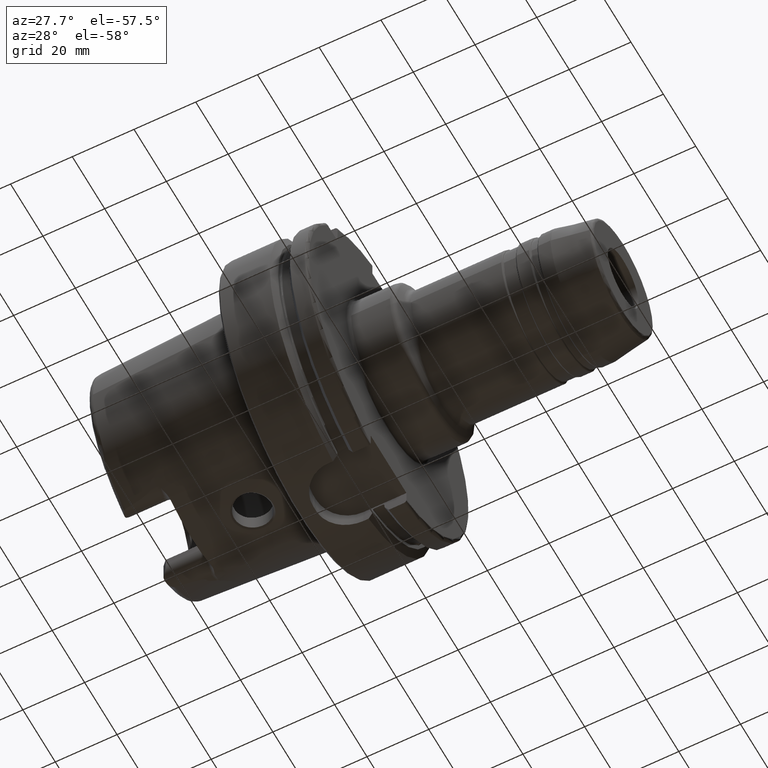
[diagram: clean part render]
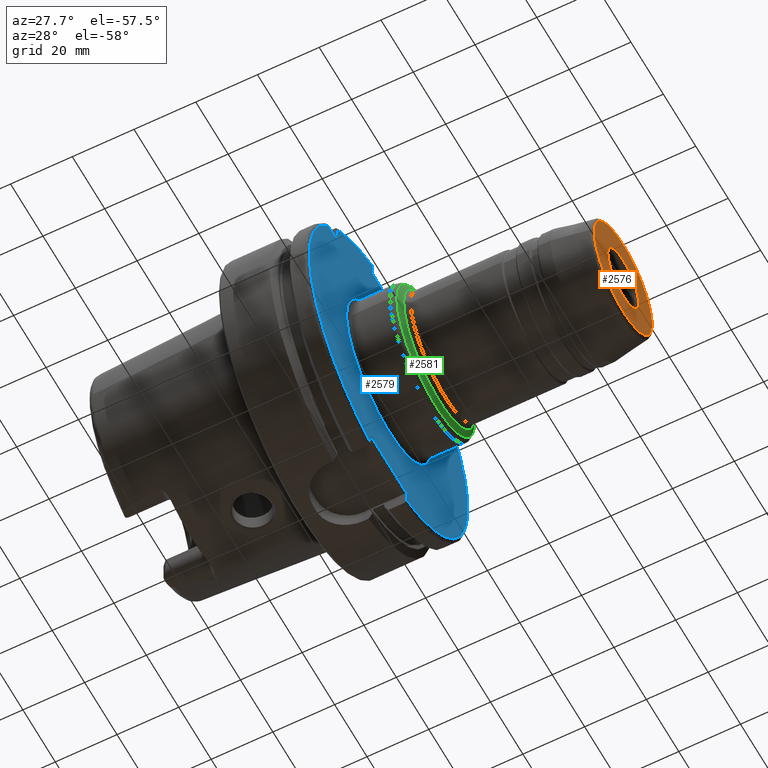
[diagram: same view with three faces highlighted in distinct colors, each labeled with its STEP entity id]
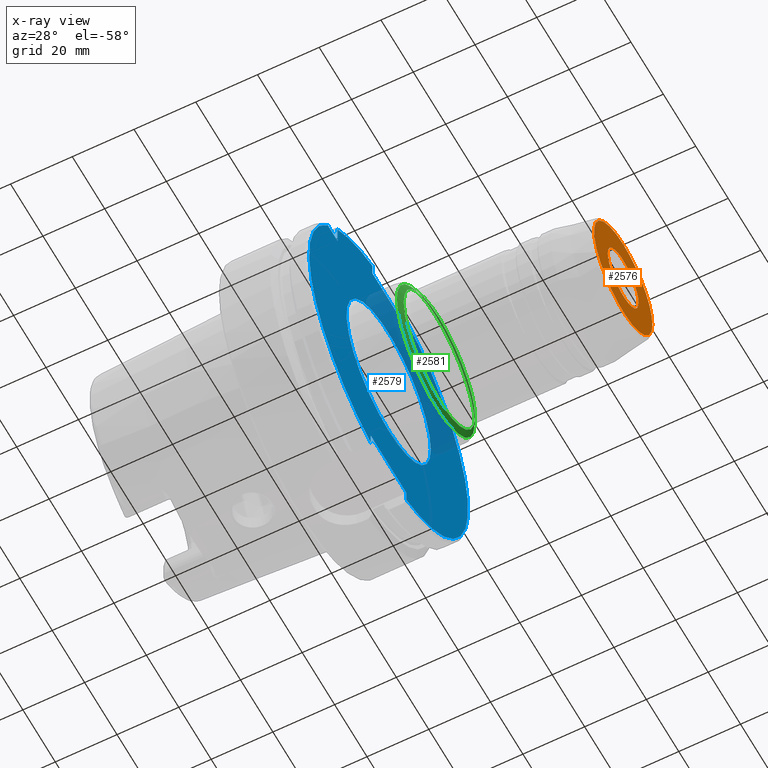
[diagram: x-ray of the same camera — body ghosted, the three highlighted faces saturated]
A machine part, auxiliary view with three faces highlighted in distinct colors.
The next image is the same camera in x-ray (body ghosted, the three faces saturated) — at least one of them is partly hidden behind the body in this view.
Their STEP definitions:

[orange] entity #2576 — the highlighted planar face has unit normal (1, 0, 0).
#93=FACE_BOUND('',#589,.T.);
#104=PLANE('',#2804);
#452=FACE_OUTER_BOUND('',#588,.T.);
#588=EDGE_LOOP('',(#1829,#1830));
#589=EDGE_LOOP('',(#1831,#1832));
#784=CIRCLE('',#2801,17.9609003688227);
#786=CIRCLE('',#2803,17.9609003688227);
#787=CIRCLE('',#2805,9.52499999999999);
#788=CIRCLE('',#2806,9.52499999999999);
#1009=VERTEX_POINT('',#4117);
#1010=VERTEX_POINT('',#4118);
#1011=VERTEX_POINT('',#4123);
#1012=VERTEX_POINT('',#4124);
#1324=EDGE_CURVE('',#1009,#1010,#784,.T.);
#1326=EDGE_CURVE('',#1010,#1009,#786,.T.);
#1327=EDGE_CURVE('',#1011,#1012,#787,.T.);
#1328=EDGE_CURVE('',#1012,#1011,#788,.T.);
#1829=ORIENTED_EDGE('',*,*,#1324,.F.);
#1830=ORIENTED_EDGE('',*,*,#1326,.F.);
#1831=ORIENTED_EDGE('',*,*,#1327,.F.);
#1832=ORIENTED_EDGE('',*,*,#1328,.F.);
#2576=ADVANCED_FACE('',(#452,#93),#104,.T.);
#2801=AXIS2_PLACEMENT_3D('',#4119,#3278,#3279);
#2803=AXIS2_PLACEMENT_3D('',#4121,#3282,#3283);
#2804=AXIS2_PLACEMENT_3D('',#4122,#3284,#3285);
#2805=AXIS2_PLACEMENT_3D('',#4125,#3286,#3287);
#2806=AXIS2_PLACEMENT_3D('',#4126,#3288,#3289);
#3278=DIRECTION('center_axis',(-1.,0.,0.));
#3279=DIRECTION('ref_axis',(0.,-1.,1.83697019872103E-16));
#3282=DIRECTION('center_axis',(-1.,0.,0.));
#3283=DIRECTION('ref_axis',(0.,-1.,1.83697019872103E-16));
#3284=DIRECTION('center_axis',(1.,0.,0.));
#3285=DIRECTION('ref_axis',(0.,0.,-1.));
#3286=DIRECTION('center_axis',(1.,0.,0.));
#3287=DIRECTION('ref_axis',(0.,0.,-1.));
#3288=DIRECTION('center_axis',(1.,0.,0.));
#3289=DIRECTION('ref_axis',(0.,0.,-1.));
#4117=CARTESIAN_POINT('',(105.,17.9609003688227,-5.49893978662082E-15));
#4118=CARTESIAN_POINT('',(105.,-2.19957591464833E-15,17.9609003688227));
#4119=CARTESIAN_POINT('Origin',(105.,0.,0.));
#4121=CARTESIAN_POINT('Origin',(105.,0.,0.));
#4122=CARTESIAN_POINT('Origin',(105.,9.52499999999999,0.));
#4123=CARTESIAN_POINT('',(105.,9.52499999999999,0.));
#4124=CARTESIAN_POINT('',(105.,-9.52499999999999,-1.16647607618785E-15));
#4125=CARTESIAN_POINT('Origin',(105.,0.,0.));
#4126=CARTESIAN_POINT('Origin',(105.,0.,0.));

[blue] entity #2579 — the highlighted planar face has unit normal (1, 0, 0).
#94=FACE_BOUND('',#593,.T.);
#105=PLANE('',#2818);
#173=LINE('',#4150,#288);
#174=LINE('',#4154,#289);
#175=LINE('',#4156,#290);
#176=LINE('',#4158,#291);
#177=LINE('',#4162,#292);
#178=LINE('',#4164,#293);
#179=LINE('',#4166,#294);
#180=LINE('',#4169,#295);
#288=VECTOR('',#3315,10.);
#289=VECTOR('',#3318,10.);
#290=VECTOR('',#3319,10.);
#291=VECTOR('',#3320,10.);
#292=VECTOR('',#3323,10.);
#293=VECTOR('',#3324,10.);
#294=VECTOR('',#3325,10.);
#295=VECTOR('',#3328,10.);
#455=FACE_OUTER_BOUND('',#592,.T.);
#592=EDGE_LOOP('',(#1848,#1849,#1850,#1851,#1852,#1853,#1854,#1855,#1856,
#1857,#1858));
#593=EDGE_LOOP('',(#1859,#1860));
#791=CIRCLE('',#2810,26.);
#792=CIRCLE('',#2811,26.);
#798=CIRCLE('',#2819,49.);
#799=CIRCLE('',#2820,49.);
#800=CIRCLE('',#2821,49.);
#1015=VERTEX_POINT('',#4131);
#1016=VERTEX_POINT('',#4133);
#1021=VERTEX_POINT('',#4148);
#1022=VERTEX_POINT('',#4149);
#1023=VERTEX_POINT('',#4151);
#1024=VERTEX_POINT('',#4153);
#1025=VERTEX_POINT('',#4155);
#1026=VERTEX_POINT('',#4157);
#1027=VERTEX_POINT('',#4159);
#1028=VERTEX_POINT('',#4161);
#1029=VERTEX_POINT('',#4163);
#1030=VERTEX_POINT('',#4165);
#1031=VERTEX_POINT('',#4167);
#1331=EDGE_CURVE('',#1015,#1016,#791,.T.);
#1332=EDGE_CURVE('',#1016,#1015,#792,.T.);
#1339=EDGE_CURVE('',#1021,#1022,#173,.T.);
#1340=EDGE_CURVE('',#1022,#1023,#798,.T.);
#1341=EDGE_CURVE('',#1023,#1024,#174,.T.);
#1342=EDGE_CURVE('',#1024,#1025,#175,.T.);
#1343=EDGE_CURVE('',#1025,#1026,#176,.T.);
#1344=EDGE_CURVE('',#1026,#1027,#799,.T.);
#1345=EDGE_CURVE('',#1027,#1028,#177,.T.);
#1346=EDGE_CURVE('',#1028,#1029,#178,.T.);
#1347=EDGE_CURVE('',#1029,#1030,#179,.T.);
#1348=EDGE_CURVE('',#1030,#1031,#800,.T.);
#1349=EDGE_CURVE('',#1031,#1021,#180,.T.);
#1848=ORIENTED_EDGE('',*,*,#1339,.T.);
#1849=ORIENTED_EDGE('',*,*,#1340,.T.);
#1850=ORIENTED_EDGE('',*,*,#1341,.T.);
#1851=ORIENTED_EDGE('',*,*,#1342,.T.);
#1852=ORIENTED_EDGE('',*,*,#1343,.T.);
#1853=ORIENTED_EDGE('',*,*,#1344,.T.);
#1854=ORIENTED_EDGE('',*,*,#1345,.T.);
#1855=ORIENTED_EDGE('',*,*,#1346,.T.);
#1856=ORIENTED_EDGE('',*,*,#1347,.T.);
#1857=ORIENTED_EDGE('',*,*,#1348,.T.);
#1858=ORIENTED_EDGE('',*,*,#1349,.T.);
#1859=ORIENTED_EDGE('',*,*,#1332,.F.);
#1860=ORIENTED_EDGE('',*,*,#1331,.F.);
#2579=ADVANCED_FACE('',(#455,#94),#105,.T.);
#2810=AXIS2_PLACEMENT_3D('',#4134,#3296,#3297);
#2811=AXIS2_PLACEMENT_3D('',#4135,#3298,#3299);
#2818=AXIS2_PLACEMENT_3D('',#4147,#3313,#3314);
#2819=AXIS2_PLACEMENT_3D('',#4152,#3316,#3317);
#2820=AXIS2_PLACEMENT_3D('',#4160,#3321,#3322);
#2821=AXIS2_PLACEMENT_3D('',#4168,#3326,#3327);
#3296=DIRECTION('center_axis',(1.,0.,0.));
#3297=DIRECTION('ref_axis',(0.,-1.,-1.22464679914735E-16));
#3298=DIRECTION('center_axis',(1.,0.,0.));
#3299=DIRECTION('ref_axis',(0.,-1.,-1.22464679914735E-16));
#3313=DIRECTION('center_axis',(1.,0.,0.));
#3314=DIRECTION('ref_axis',(0.,0.,-1.));
#3315=DIRECTION('',(0.,-1.,0.));
#3316=DIRECTION('center_axis',(1.,0.,0.));
#3317=DIRECTION('ref_axis',(0.,0.,-1.));
#3318=DIRECTION('',(0.,0.,1.));
#3319=DIRECTION('',(0.,1.,0.));
#3320=DIRECTION('',(0.,0.,-1.));
#3321=DIRECTION('center_axis',(1.,0.,0.));
#3322=DIRECTION('ref_axis',(0.,0.,-1.));
#3323=DIRECTION('',(0.,0.,-1.));
#3324=DIRECTION('',(0.,-1.,0.));
#3325=DIRECTION('',(0.,0.,1.));
#3326=DIRECTION('center_axis',(1.,0.,0.));
#3327=DIRECTION('ref_axis',(0.,0.,-1.));
#3328=DIRECTION('',(0.,0.,-1.));
#4131=CARTESIAN_POINT('',(29.,-3.18408167778312E-15,-26.));
#4133=CARTESIAN_POINT('',(29.,26.,6.36816335556624E-15));
#4134=CARTESIAN_POINT('Origin',(29.,0.,0.));
#4135=CARTESIAN_POINT('Origin',(29.,0.,0.));
#4147=CARTESIAN_POINT('Origin',(29.,0.,0.));
#4148=CARTESIAN_POINT('',(29.,-31.5,31.5));
#4149=CARTESIAN_POINT('',(29.,-37.5333185316726,31.5));
#4150=CARTESIAN_POINT('',(29.,-18.25,31.5));
#4151=CARTESIAN_POINT('',(29.,-11.,-47.7493455452533));
#4152=CARTESIAN_POINT('Origin',(29.,0.,0.));
#4153=CARTESIAN_POINT('',(29.,-11.,-44.));
#4154=CARTESIAN_POINT('',(29.,-11.,-22.));
#4155=CARTESIAN_POINT('',(29.,11.,-44.));
#4156=CARTESIAN_POINT('',(29.,-5.55111512312578E-16,-44.));
#4157=CARTESIAN_POINT('',(29.,11.,-47.7493455452533));
#4158=CARTESIAN_POINT('',(29.,11.,-22.));
#4159=CARTESIAN_POINT('',(29.,10.,47.9687398208458));
#4160=CARTESIAN_POINT('Origin',(29.,0.,0.));
#4161=CARTESIAN_POINT('',(29.,10.,44.));
#4162=CARTESIAN_POINT('',(29.,10.,22.));
#4163=CARTESIAN_POINT('',(29.,-10.,44.));
#4164=CARTESIAN_POINT('',(29.,0.,44.));
#4165=CARTESIAN_POINT('',(29.,-10.,47.9687398208458));
#4166=CARTESIAN_POINT('',(29.,-10.,22.));
#4167=CARTESIAN_POINT('',(29.,-31.5,37.5333185316726));
#4168=CARTESIAN_POINT('Origin',(29.,0.,0.));
#4169=CARTESIAN_POINT('',(29.,-31.5,15.75));

[green] entity #2581 — the highlighted conical surface has half-angle 60 deg.
#147=CONICAL_SURFACE('',#2827,23.,1.0471975511966);
#181=LINE('',#4180,#296);
#296=VECTOR('',#3341,23.);
#457=FACE_OUTER_BOUND('',#595,.T.);
#595=EDGE_LOOP('',(#1869,#1870,#1871,#1872,#1873,#1874,#1875,#1876));
#801=CIRCLE('',#2823,22.);
#803=CIRCLE('',#2825,22.);
#804=CIRCLE('',#2826,22.);
#805=CIRCLE('',#2828,24.);
#806=CIRCLE('',#2829,24.);
#807=CIRCLE('',#2830,24.);
#1032=VERTEX_POINT('',#4171);
#1033=VERTEX_POINT('',#4172);
#1034=VERTEX_POINT('',#4175);
#1035=VERTEX_POINT('',#4179);
#1036=VERTEX_POINT('',#4181);
#1037=VERTEX_POINT('',#4183);
#1350=EDGE_CURVE('',#1032,#1033,#801,.T.);
#1352=EDGE_CURVE('',#1033,#1034,#803,.T.);
#1353=EDGE_CURVE('',#1034,#1032,#804,.T.);
#1354=EDGE_CURVE('',#1034,#1035,#181,.T.);
#1355=EDGE_CURVE('',#1036,#1035,#805,.T.);
#1356=EDGE_CURVE('',#1037,#1036,#806,.T.);
#1357=EDGE_CURVE('',#1035,#1037,#807,.T.);
#1869=ORIENTED_EDGE('',*,*,#1350,.F.);
#1870=ORIENTED_EDGE('',*,*,#1353,.F.);
#1871=ORIENTED_EDGE('',*,*,#1354,.T.);
#1872=ORIENTED_EDGE('',*,*,#1355,.F.);
#1873=ORIENTED_EDGE('',*,*,#1356,.F.);
#1874=ORIENTED_EDGE('',*,*,#1357,.F.);
#1875=ORIENTED_EDGE('',*,*,#1354,.F.);
#1876=ORIENTED_EDGE('',*,*,#1352,.F.);
#2581=ADVANCED_FACE('',(#457),#147,.T.);
#2823=AXIS2_PLACEMENT_3D('',#4173,#3331,#3332);
#2825=AXIS2_PLACEMENT_3D('',#4176,#3335,#3336);
#2826=AXIS2_PLACEMENT_3D('',#4177,#3337,#3338);
#2827=AXIS2_PLACEMENT_3D('',#4178,#3339,#3340);
#2828=AXIS2_PLACEMENT_3D('',#4182,#3342,#3343);
#2829=AXIS2_PLACEMENT_3D('',#4184,#3344,#3345);
#2830=AXIS2_PLACEMENT_3D('',#4185,#3346,#3347);
#3331=DIRECTION('center_axis',(1.,0.,0.));
#3332=DIRECTION('ref_axis',(0.,-1.,3.06161699786838E-17));
#3335=DIRECTION('center_axis',(1.,0.,0.));
#3336=DIRECTION('ref_axis',(0.,-1.,3.06161699786838E-17));
#3337=DIRECTION('center_axis',(1.,0.,0.));
#3338=DIRECTION('ref_axis',(0.,-1.,3.06161699786838E-17));
#3339=DIRECTION('center_axis',(-1.,0.,0.));
#3340=DIRECTION('ref_axis',(0.,1.,0.));
#3341=DIRECTION('',(-0.500000000000001,-0.866025403784438,-1.06057523872491E-16));
#3342=DIRECTION('center_axis',(-1.,0.,0.));
#3343=DIRECTION('ref_axis',(0.,-1.,3.06161699786838E-17));
#3344=DIRECTION('center_axis',(-1.,0.,0.));
#3345=DIRECTION('ref_axis',(0.,-1.,3.06161699786838E-17));
#3346=DIRECTION('center_axis',(-1.,0.,0.));
#3347=DIRECTION('ref_axis',(0.,-1.,3.06161699786838E-17));
#4171=CARTESIAN_POINT('',(45.4226497308104,22.,-1.34711147906209E-15));
#4172=CARTESIAN_POINT('',(45.4226497308104,-2.69422295812418E-15,22.));
#4173=CARTESIAN_POINT('Origin',(45.4226497308104,0.,-3.36777869765522E-15));
#4175=CARTESIAN_POINT('',(45.4226497308104,-22.,-2.69422295812418E-15));
#4176=CARTESIAN_POINT('Origin',(45.4226497308104,0.,-3.36777869765522E-15));
#4177=CARTESIAN_POINT('Origin',(45.4226497308104,0.,-3.36777869765522E-15));
#4178=CARTESIAN_POINT('Origin',(44.8452994616207,0.,0.));
#4179=CARTESIAN_POINT('',(44.2679491924311,-24.,-2.93915231795365E-15));
#4180=CARTESIAN_POINT('',(44.8452994616207,-23.,-2.81668763803891E-15));
#4181=CARTESIAN_POINT('',(44.2679491924311,24.,-7.34788079488412E-15));
#4182=CARTESIAN_POINT('Origin',(44.2679491924311,0.,-3.67394039744206E-15));
#4183=CARTESIAN_POINT('',(44.2679491924311,-2.93915231795365E-15,24.));
#4184=CARTESIAN_POINT('Origin',(44.2679491924311,0.,-3.67394039744206E-15));
#4185=CARTESIAN_POINT('Origin',(44.2679491924311,0.,-3.67394039744206E-15));